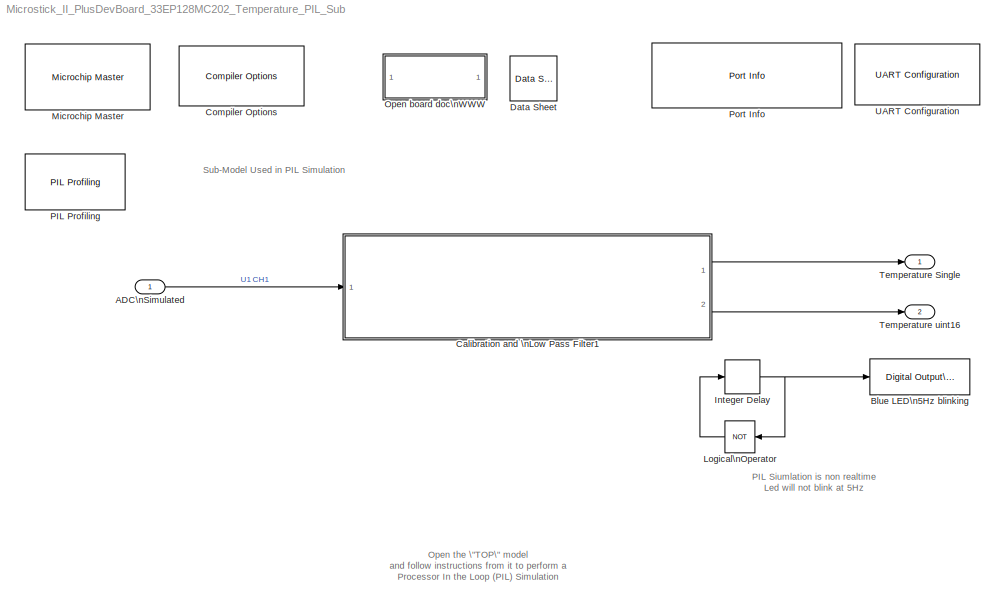
MODEL Microstick_II_PlusDevBoard_33EP128MC202_Temperature_PIL_Sub
KIND model
BLOCK [Inport] ADC\nSimulated
  IconDisplay = Port number
  OutDataTypeStr = uint16
  SID = 690
  SampleTime = .001
BLOCK [Reference] Blue LED\n5Hz blinking  REF=MCHP_Blockset/Digital IO/Digital Output\nWrite
  MCHP_MASTERLINK = Microstick_II_PlusDevBoard_33EP128MC202_Temperature_PIL_Sub/Microchip Master
  MCHP_PORT = {Digital Out}{DOU}1:1:B15;
  ORDERING = None
  PACK = off
  PIN = 15
  PORT = Dynamic Options
  PORT_TXT = B   [ 0 : 15 ]
  Ports = [1]
  SID = 684
  SIMULTANEOUS = off
  SampleTime = -1
  SourceBlock = MCHP_Blockset/Digital IO/Digital Output\nWrite
  SourceType = Output driver for Digital Output Pins
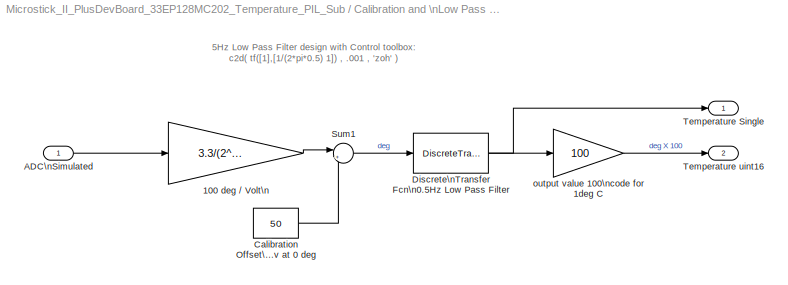
BLOCK [SubSystem] Calibration and \nLow Pass Filter1
  FunctionWithSeparateData = off
  MaskHideContents = off
  MinAlgLoopOccurrences = off
  Opaque = off
  Ports = [1, 2]
  PropExecContextOutsideSubsystem = off
  RTWSystemCode = Auto
  RequestExecContextInheritance = off
  SID = 702
  TreatAsAtomicUnit = on
BLOCK [Gain] Calibration and \nLow Pass Filter1/100 deg // Volt\n
  Gain = 3.3/(2^16) * 100
  OutDataTypeStr = single
  ParamDataTypeStr = Inherit: Inherit via internal rule
  SID = 704
  SaturateOnIntegerOverflow = off
BLOCK [Inport] Calibration and \nLow Pass Filter1/ADC\nSimulated
  IconDisplay = Port number
  OutDataTypeStr = uint16
  SID = 703
  SampleTime = .001
BLOCK [Constant] Calibration and \nLow Pass Filter1/Calibration Offset\n500 mv at 0 deg
  OutDataTypeStr = Inherit: Inherit via back propagation
  SID = 705
  SampleTime = -1
  Value = 50
BLOCK [DiscreteTransferFcn] Calibration and \nLow Pass Filter1/Discrete\nTransfer Fcn\n0.5Hz Low Pass Filter
  Denominator = [1 -0.99686]
  InputPortMap = u0
  Numerator = [0.0031367]
  Ports = [1, 1]
  SID = 706
BLOCK [Sum] Calibration and \nLow Pass Filter1/Sum1
  AccumDataTypeStr = Inherit: Same as first input
  IconShape = round
  InputSameDT = off
  Inputs = |+-
  OutDataTypeStr = Inherit: Inherit via internal rule
  Ports = [2, 1]
  SID = 707
  SaturateOnIntegerOverflow = off
BLOCK [Outport] Calibration and \nLow Pass Filter1/Temperature Single
  IconDisplay = Port number
  OutDataTypeStr = single
  SID = 709
  SampleTime = .001
BLOCK [Outport] Calibration and \nLow Pass Filter1/Temperature uint16
  IconDisplay = Port number
  OutDataTypeStr = uint16
  Port = 2
  SID = 710
  SampleTime = .001
BLOCK [Gain] Calibration and \nLow Pass Filter1/output value 100\ncode for 1deg C
  Gain = 100
  OutDataTypeStr = uint16
  ParamDataTypeStr = Inherit: Inherit via internal rule
  SID = 708
  SaturateOnIntegerOverflow = off
BLOCK [Reference] Compiler Options  REF=MCHP_Blockset/System Configuration/Compiler Options
  AssemblyListing = on
  CMSIS_DSP = Dynamic Options
  CMSIS_DSP_TXT = Dynamic Options
  COMP_LIST = Dynamic Options
  COMP_LIST_TXT = xc16 - v1.61
  DEBUG_INFO = on
  DFP_LIST = Dynamic Options
  DFP_LIST_TXT = v 1.3.85
  HEAP_SIZE = 1024
  LATEST_CMPLR = on
  MAGGREGATE = off
  MCHP_MASTERLINK = Microstick_II_PlusDevBoard_33EP128MC202_Temperature_PIL_Sub/Microchip Master
  MCHP_MULTITHREAD_COMPILATION = on
  MCODE = is more than 32768
  MCONST = in code memory
  MDATA = Can use all available memory
  MLARGEARRAY = on
  MPLAB_LINKLIB = default
  MPLAB_LINKLIB1 = default
  MSCALAR = Can use all available memory
  NO_EDS_WARN = on
  OMF = elf
  OPTIMIZATION_FLTO = on
  OPTIMIZATION_LEVEL = 1
  OPTIMIZATION_REORDER = off
  PRINT_STATISTICS = off
  PROCEDURAL_ABSTRACTION = off
  Ports = []
  Priority = 1
  ProduceHexOutput = on
  SID = 2
  SourceBlock = MCHP_Blockset/System Configuration/Compiler Options
  UNROLL_LOOPS = off
  USE_64BIT_DOUBLE = off
  UseCustom_LinkerScript = off
BLOCK [Reference] Data Sheet  REF=MCHP_Blockset/System Info/Data Sheet
  AttributesFormatString = %<cpy_MCHP_Id>
  DOC_FileLastCheckTime = [0 0 0 0 0 0]
  DOC_MCHP_Id = 33FJ64MC802
  DOC_Type = datasheet
  MCHP_MASTERLINK = Microstick_II_PlusDevBoard_33EP128MC202_Temperature_PIL_Sub/Microchip Master
  Ports = []
  SID = 6
  SourceBlock = MCHP_Blockset/System Info/Data Sheet
  cpy_MCHP_Id = 33EP128MC202
BLOCK [Delay] Integer Delay
  DelayLength = 1
  InitialCondition = 0
  InputPortMap = u0
  InputProcessing = Inherited
  Ports = [1, 1]
  SID = 685
  SampleTime = .1
BLOCK [Logic] Logical\nOperator
  AllPortsSameDT = off
  Operator = NOT
  OutDataTypeStr = boolean
  Ports = [1, 1]
  SID = 686
BLOCK [Reference] Microchip Master  REF=MCHP_Blockset/System Configuration/Microchip Master
  ACLKCON = Optimized for PWM resolution & ADC conversion speed
  ACLKCON_spd = Optimized for PWM resolution & ADC conversion speed
  ACTIV_PLL = on
  ACTIV_PLL_spd = on
  AIVTDIS = Disable Alternate Vector Table
  ALTADREF = Not used
  ALTCMPI = Not used
  ALTCVREF = Not used
  ALTI2C = I2C mapped to SDA1/SCL1 pins
  ALTI2C1 = I2C1 mapped to SDA1/SCL1 pins
  ALTI2C2 = I2C2 mapped to SDA2/SCL2 pins
  ALTI2C3 = I2C3 mapped to SDA3/SCL3 pins
  ALTPMP = Not used
  ALTQIO = QEA1; QEB1; INDX1 are selected as inputs to QEI1
  ALTRB6 = Not used
  ALTSS1 = SS1A is selected as the I/O pin for SPI1
  ALTVREF = Not used
  APL = Aux Flash Code protect is disabled
  APLK = Aux Flash Write Protection or Code Protection is Enabled
  ATMOD8 = Not used
  AWRP = Aux Flash may be written
  BACKBUG = Not used
  BISTDIS = mBIST on reset feature disabled
  BKBUG = Not used
  BODENV = 2.7V
  BOOTISA = Boot code and Exception code is MIPS32
  BOREN = Disable
  BOREN0 = Enabled
  BOREN1 = Not used
  BORLVL = Not used
  BORSEL = BOR trip voltage 2.1v (Non-OPAMP deviced operation)
  BORV = Not used
  BSEN = No Boot Segment
  BSEQ = Not used
  BSLIM = Not used
  BSS = No Boot program Flash segment
  BSS2 = No Boot Segment
  BSSO = Not used
  BTMODE = Not used
  BTSWP = BOOTSWP instruction is disabled
  BUSYFLAG = Dynamic Options
  BUSYFLAG_TXT = None
  BWP = Not used
  BWRP = Boot Segment may be written
  CFGAN14 = Not used
  CFGAN15 = Not used
  CMPPOL0 = Hysteresis is applied to falling edge
  CMPPOL1 = Hysteresis is applied to falling edge
  COE = Not used
  CP = Protection Disabled
  CPRA0 = Master core owns pin.
  CPRA1 = Master core owns pin.
  CPRA2 = Master core owns pin.
  CPRA3 = Master core owns pin.
  CPRA4 = Master core owns pin.
  CPRB0 = Master core owns pin.
  CPRB1 = Master core owns pin.
  CPRB10 = Master core owns pin.
  CPRB11 = Master core owns pin.
  CPRB12 = Master core owns pin.
  CPRB13 = Master core owns pin.
  CPRB14 = Master core owns pin.
  CPRB15 = Master core owns pin.
  CPRB2 = Master core owns pin.
  CPRB3 = Master core owns pin.
  CPRB4 = Master core owns pin.
  CPRB5 = Master core owns pin.
  CPRB6 = Master core owns pin.
  CPRB7 = Master core owns pin.
  CPRB8 = Master core owns pin.
  CPRB9 = Master core owns pin.
  CPRC0 = Master core owns pin.
  CPRC1 = Master core owns pin.
  CPRC10 = Master core owns pin.
  CPRC11 = Master core owns pin.
  CPRC12 = Master core owns pin.
  CPRC13 = Master core owns pin.
  CPRC14 = Master core owns pin.
  CPRC15 = Master core owns pin.
  CPRC2 = Master core owns pin.
  CPRC3 = Master core owns pin.
  CPRC4 = Master core owns pin.
  CPRC5 = Master core owns pin.
  CPRC6 = Master core owns pin.
  CPRC7 = Master core owns pin.
  CPRC8 = Master core owns pin.
  CPRC9 = Master core owns pin.
  CPRD0 = Master core owns pin.
  CPRD1 = Master core owns pin.
  CPRD10 = Master core owns pin.
  CPRD11 = Master core owns pin.
  CPRD12 = Master core owns pin.
  CPRD13 = Master core owns pin.
  CPRD14 = Master core owns pin.
  CPRD15 = Master core owns pin.
  CPRD2 = Master core owns pin.
  CPRD3 = Master core owns pin.
  CPRD4 = Master core owns pin.
  CPRD5 = Master core owns pin.
  CPRD6 = Master core owns pin.
  CPRD7 = Master core owns pin.
  CPRD8 = Master core owns pin.
  CPRD9 = Master core owns pin.
  CPRE0 = Master core owns pin.
  CPRE1 = Master core owns pin.
  CPRE10 = Master core owns pin.
  CPRE11 = Master core owns pin.
  CPRE12 = Master core owns pin.
  CPRE13 = Master core owns pin.
  CPRE14 = Master core owns pin.
  CPRE15 = Master core owns pin.
  CPRE2 = Master core owns pin.
  CPRE3 = Master core owns pin.
  CPRE4 = Master core owns pin.
  CPRE5 = Master core owns pin.
  CPRE6 = Master core owns pin.
  CPRE7 = Master core owns pin.
  CPRE8 = Master core owns pin.
  CPRE9 = Master core owns pin.
  CSEQ = Not used
  CSS = No Protection (other than CWRP)
  CTXT1 = Not Assigned
  CTXT2 = Not Assigned
  CTXT3 = Not Assigned
  CTXT4 = Not Assigned
  CWRP = Configuration Segment may be written
  DBCC = No Cross Connection between DAC outputs
  DBGPER = Allow CPU access to all permission regions
  DEBUG = Debugger is disabled
  DFMCY = Not used
  DISUVREG = Not used
  DMTCNT = 2^31 (2147483648)
  DMTCNTH = Not used
  DMTCNTL = Not used
  DMTDIS = Dead Man Timer is Disabled and can be enabled by software
  DMTEN = Dead Man Timer is Enabled and cannot be disabled by software
  DMTINTV = Window/Interval value is 127/128 counter value
  DMTIVT = Not used
  DMTIVTH = Not used
  DMTIVTL = Not used
  DSBOREN = Enable ZPBOR during Deep Sleep Mode
  DSLPBOR = Not used
  DSSWEN = Not used
  DSWDTEN = Enable DSWDT during Deep Sleep Mode
  DSWDTOSC = Select LPRC as DSWDT Reference clock
  DSWDTPS = 1:2^36
  EBS = No Boot EEPROM
  EJTAGBEN = Normal EJTAG functionality
  ESS = No Segment Data EEPROM
  EXTDDRSIZE = Not used
  FCANIO = Not used
  FCKSM = Clock switching is enabled;Fail-safe Clock Monitor is disabled
  FCKSMEN = Sw Disabled; Mon Disabled
  FDBGWP = Not used
  FDMTEN = Deadman Timer is disabled
  FDSEN = Enable DSEN bit in DSCON
  FECCCON = ECC and Dynamic ECC are disabled (ECCCON bits are writable)
  FETHIO = Default Ethernet I/O
  FMIIEN = MII Enabled
  FNOSC = Internal Fast RC (FRC)
  FOS = Internal Fast RC
  FOSFPR = HS3 w/PLL 16x
  FPBDIV = Not used
  FPLLICLK = FRC is input to the System PLL
  FPLLIDIV = 8x Divider
  FPLLMUL = Not used
  FPLLMULT = PLL Multiply by 128
  FPLLODIV = 32x Divider
  FPLLRNG = 34-68 MHz Input
  FPR = ECIO w/ PLL 16x
  FPWRT = 128ms
  FRANGE = High Range
  FSLEEP = Flash is powered down when the device is in Sleep mode
  FSOSCEN = Disable Secondary Oscillator
  FSRSSEL = Not used
  FUSBIDIO = Controlled by the USB Module
  FUSBIDIO1 = USBID pin is controlled by the USB1 module
  FUSBIDIO2 = USBID pin is controlled by the USB2 module
  FVBUSIO1 = VBUSON pin is controlled by the USB1 module
  FVBUSIO2 = VBUSON pin is controlled by the USB2 module
  FVBUSONIO = Not used
  FWDTEN = Disable
  FWDTWINSZ = Window size is 25%
  FWPSA = 1:512
  FWPSA0 = 1:128
  FWPSB = 1:16
  GCP = General Segment Code protect is Disabled
  GSS = User program memory is not code-protected
  GSS0 = Not used
  GSSK = General Segment Write Protection or Code Protection is Enabled
  GWRP = General Segment may be written
  HPOL = PWM module high side output pins have active-high output polarity
  HSAEN = Mailbox data flow control handshake protocol block disabled.
  HSBEN = Mailbox data flow control handshake protocol block disabled.
  HSCEN = Mailbox data flow control handshake protocol block disabled.
  HSDEN = Mailbox data flow control handshake protocol block disabled.
  HSEEN = Mailbox data flow control handshake protocol block disabled.
  HSFEN = Mailbox data flow control handshake protocol block disabled.
  HSGEN = Mailbox data flow control handshake protocol block disabled.
  HSHEN = Mailbox data flow control handshake protocol block disabled.
  HYST0 = 45 mV Hysteresis
  HYST1 = 45 mV Hysteresis
  I2C1SEL = Not used
  I2C2SEL = Not used
  IBSEQ = Not used
  ICESEL = Communicate on PGEC1/PGED1
  ICS = Communicate on PGEC1 and PGED1
  IESO = Start up with FRC; then switch
  INT_PRIORITY_DMA = 0
  IOL1WAY = Allow multiple reconfigurations
  JTAGEN = Disable
  LPCFG = Not used
  LPOL = PWM module low side output pins have active-high output polarity
  LPRCSEL = Not used
  LVRCFG = Not used
  MAXTEMP = Not used
  MBXHSA = MSIxMBXD15 assigned to mailbox handshake protocol block A
  MBXHSB = MSIxMBXD15 assigned to mailbox handshake protocol block B
  MBXHSC = MSIxMBXD15 assigned to mailbox handshake protocol block C
  MBXHSD = MSIxMBXD15 assigned to mailbox handshake protocol block D
  MBXHSE = MSIxMBXD15 assigned to mailbox handshake protocol block E
  MBXHSF = MSIxMBXD15 assigned to mailbox handshake protocol block F
  MBXHSG = MSIxMBXD15 assigned to mailbox handshake protocol block G
  MBXHSH = MSIxMBXD15 assigned to mailbox handshake protocol block H
  MBXM0 = Mailbox register configured for Master data read (Slave to Master data transfer)
  MBXM1 = Mailbox register configured for Master data read (Slave to Master data transfer)
  MBXM10 = Mailbox register configured for Master data read (Slave to Master data transfer)
  MBXM11 = Mailbox register configured for Master data read (Slave to Master data transfer)
  MBXM12 = Mailbox register configured for Master data read (Slave to Master data transfer)
  MBXM13 = Mailbox register configured for Master data read (Slave to Master data transfer)
  MBXM14 = Mailbox register configured for Master data read (Slave to Master data transfer)
  MBXM15 = Mailbox register configured for Master data read (Slave to Master data transfer)
  MBXM2 = Mailbox register configured for Master data read (Slave to Master data transfer)
  MBXM3 = Mailbox register configured for Master data read (Slave to Master data transfer)
  MBXM4 = Mailbox register configured for Master data read (Slave to Master data transfer)
  MBXM5 = Mailbox register configured for Master data read (Slave to Master data transfer)
  MBXM6 = Mailbox register configured for Master data read (Slave to Master data transfer)
  MBXM7 = Mailbox register configured for Master data read (Slave to Master data transfer)
  MBXM8 = Mailbox register configured for Master data read (Slave to Master data transfer)
  MBXM9 = Mailbox register configured for Master data read (Slave to Master data transfer)
  MCA = Not used
  MCHPVAR = MCHP.fcy.MIPS=MCHP_Fun.Hex2num('418F004544924924');MCHP.fcy.SYSCLK=MCHP_Fun.Hex2num('418F004544924924');MCHP.fcy.ADC=MCHP_Fun.Hex2num('418F004544924924');MCHP.fcy.Comparator=MCHP_Fun.Hex2num('418F004544924924');MCHP.fcy.I2C=MCHP_Fun.Hex2num('418F004544924924');MCHP.fcy.SPI=MCHP_Fun.Hex2num('418F004544924924');MCHP.fcy.UART=MCHP_Fun.Hex2num('418F004544924924');MCHP.fcy.Timers=MCHP_Fun.Hex2num('418F...<+13730ch>
  MCHP_CRC = 15783838
  MCHP_PLLRegisters = [5    245  16387     -1     -1]
  MCHP_TIMER_REQUEST = {Time Step}{TS}0:2:3:1:[]:65013.92857142857;
  MCHP_TIMER_RESULT = [1 65012.928571428594 ]
  MCLRE = Enabled
  MIPS = 65.013928571428565 * 1e6
  MIPS_DESIRED = 65e6
  MIPS_DESIRED_spd = 65e6
  NOBTSWP = BOOTSWP instruction is disabled
  ON = Not used
  OSCILLATOR_SELECT = Internal Fast RC (FRC)
  OSCILLATOR_SELECT_spd = Internal Fast RC (FRC)
  OSCIOFCN = Not used
  OSCIOFNC = general purpose digital I/O pin
  PGL1WAY = Allow only one reconfiguration
  PICREF = 33EP128MC202
  PLL96MHZ = Not used
  PLLDIV = Not used
  PLLKEN = Clock switch to PLL source will wait until the PLL lock signal is valid.
  PLLSS = Not used
  PLL_96MHZ = Not used
  PMDL1WAY = Allow only one reconfiguration
  POSCAGC = Automatic Gain Control for Oscillator
  POSCAGCDLY = Settling time = 25ms x AGCRNG
  POSCAGCRNG = Range 1x
  POSCBOOST = Boost the kick start of the oscillator
  POSCFGAIN = Gain is G3
  POSCFREQ = Not used
  POSCGAIN = 2x gain setting
  POSCMD = Primary Oscillator Disabled
  POSCMOD = Primary Oscillator Disabled
  POWERSAVE = off
  PWMLOCK = PWM registers may be written without key sequence
  PWMPIN = PWM module pins controlled by PORT register at device Reset
  PWP = Not used
  PWRTEN = Not used
  Ports = []
  Priority = 1
  QUARTZ = 7.37e+06
  QUARTZ_spd = 7.37e+06
  RBS = No Boot RAM
  RCLKSEL = Always use LPRC
  RES = Not used
  RES1 = Not used
  RES2 = Not used
  RESERVED1 = Not used
  RETCFG = Not used
  RSS = No Secure RAM
  RSTPRI = Device will obtain reset instruction from Primary flash
  RTCBAT = Not used
  RTCOSC = Not used
  RWDTPS = 1:1048576
  S1ALTI2C1 = I2C1 mapped to SDA1/SCL1 pins
  S1BACKBUG = Not used
  S1BISTDIS = Slave BIST on reset feature disabled
  S1BSSO = Not used
  S1CTXT1 = Not Assigned
  S1CTXT2 = Not Assigned
  S1CTXT3 = Not Assigned
  S1CTXT4 = Not Assigned
  S1DEBUG = Not used
  S1DMTCNTH = Not used
  S1DMTCNTL = Not used
  S1DMTDIS = Slave Dead Man Timer is Disabled and can be enabled by software
  S1DMTIVTH = Not used
  S1DMTIVTL = Not used
  S1FCKSM = Both Clock switching and Fail-safe Clock Monitor are disabled
  S1FNOSC = Internal Fast RC (FRC) Oscillator with postscaler
  S1FWDTEN = Disable
  S1ICS = Communicate on PGC1 and PGD1
  S1IESO = Start up with FRC; then switch
  S1IOL1WAY = Not used
  S1ISOLAT = The slave can operate (in debug mode) even if the SLVEN bit in the MSI is zero.
  S1MSRE = The master software oriented RESET events (RESET Op-Code; Watchdog timeout; TRAP reset; illegalInstruction) will also cause the slave subsystem to reset.
  S1NOBTSWP = BOOTSWP instruction is disabled
  S1OSCIOFNC = OSC2 is clock output
  S1PLLKEN = S1PLLKEN_ON
  S1RCLKSEL = Always use LPRC
  S1RWDTPS = 1:1048576
  S1SPI1PIN = Slave SPI1 uses I/O remap (PPS) pins
  S1SSRE = Slave generated resets will reset the Slave Enable Bit in the MSI module
  S1SWDTPS = 1:1048576
  S1WDTWIN = WDT Window is 25% of WDT period
  S1WINDIS = Watchdog Timer operates in Non-Window mode
  SEQNUM = Not used
  SID = 1
  SMB3EN = SMBus 3.0 input levels
  SMBEN = SMBus input threshold is enabled
  SMCLR = MCLR pin generates a normal system Reset
  SOSCBOOST = Boost the kick start of the oscillator
  SOSCGAIN = 2x gain setting
  SOSCSEL = Not used
  SOSCSRC = Not used
  SPI2PIN = SPI2 uses I/O remap (PPS) pins
  SSS = No Secure Segment
  SWDTPS = 1:1048576
  SWRP = Secure segment may be written
  SourceBlock = MCHP_Blockset/System Configuration/Microchip Master
  TEMP = Not used
  TIMESTEP_REF = Timer  ( 0.001s + [0.00010987%] ==> 0.001s )
  TRCEN = Trace features in the CPU are enabled
  TSEQ = Not used
  UPLLEN = USB PLL Disabled
  UPLLFSEL = USB PLL input is 24 MHz
  UPLLIDIV = Not used
  USERID = Not used
  VBATBOREN = Enable ZPBOR during VBAT Mode
  VBTBOR = Not used
  WDT = Disable
  WDTCLK = Not used
  WDTCMX = Not used
  WDTEN = Disable
  WDTPOST = 1:32768
  WDTPRE = 1:128
  WDTPS = 1:32768
  WDTSPGM = WDT stops during Flash programming
  WDTWIN = WDT Window is 25% of WDT period
  WINDIS = Watchdog Timer in Non-Window mode
  WPCFG = Not used
  WPDIS = Not used
  WPEND = Not used
  WPFP = Not used
  WUTSEL = Not used
  WWDTEN = Non-Window mode
  XTBST = Boost the kick-start
  XTCFG = 24-32 MHz crystals
  nSEQNUM = Not used
BLOCK [SubSystem] Open board doc\nWWW
  FunctionWithSeparateData = off
  MaskDisplay = disp('Microstick Plus\\nDev Board');\n
  MaskHideContents = off
  MaskIconFrame = on
  MaskIconOpaque = on
  MaskIconRotate = none
  MaskIconUnits = autoscale
  MaskPortRotate = default
  MinAlgLoopOccurrences = off
  Opaque = off
  OpenFcn = web('www.microchip.com/www.microchip.com/en556208','-browser');\npause(1);\nweb('www.microchip.com/TCAD0014178791','-browser');
  Ports = []
  PropExecContextOutsideSubsystem = off
  RTWSystemCode = Auto
  RequestExecContextInheritance = off
  SID = 642
BLOCK [Reference] PIL Profiling  REF=MCHP_Blockset/Profiling/PIL Profiling
  Info = Timer 2:  Resol: 15.38131939(ns)  -  Max value: 1.00801(ms)
  MCHP_MASTERLINK = Microstick_II_PlusDevBoard_33EP128MC202_Temperature_PIL_Sub/Microchip Master
  MCHP_TIMER_REQUEST = {TIMER for PIL}{TmrCfg}20:1:1:0:[]:65536;
  MCHP_TIMER_RESULT = [2 65535 ]
  Ports = []
  SID = 698
  SourceBlock = MCHP_Blockset/Profiling/PIL Profiling
  SourceType = Timer Configuration
  TIMER_Resolution = Dynamic Options
  TIMER_Resolution_TXT = Resol: 0.01538(us)  -  MaxPer: 1.01(ms)
  TIMER_Ressource = Dynamic Options
  TIMER_Ressource_Custom = [1]
  TIMER_Ressource_TXT = No constraints [Prefered]
BLOCK [Reference] Port Info  REF=MCHP_Blockset/System Info/Port Info
  MCHP_MASTERLINK = Microstick_II_PlusDevBoard_33EP128MC202_Temperature_PIL_Sub/Microchip Master
  Ports = []
  SID = 132
  SourceBlock = MCHP_Blockset/System Info/Port Info
BLOCK [Outport] Temperature Single
  IconDisplay = Port number
  OutDataTypeStr = single
  SID = 691
  SampleTime = .001
BLOCK [Outport] Temperature uint16
  IconDisplay = Port number
  OutDataTypeStr = uint16
  Port = 2
  SID = 692
  SampleTime = .001
BLOCK [Reference] UART Configuration  REF=MCHP_Blockset/BUS UART/UART Configuration
  ALT_IO = on
  BAUD_Choice = Dynamic Options
  BAUD_Choice_IR = Dynamic Options
  BAUD_Choice_IR_InitSeq = Dynamic Options
  BAUD_Choice_IR_InitSeq_TXT = 0
  BAUD_Choice_IR_TXT = []
  BAUD_Choice_InitSeq = Dynamic Options
  BAUD_Choice_InitSeq_TXT = 110         [-0.00%]
  BAUD_Choice_TXT = 115200         [+0.06%]
  BAUD_Custom = 115200
  BAUD_Custom_InitSeq = 0
  DuplexMode = Full duplex (default)
  FlowControl = None
  INT_PRIORITY = 0
  IRDA = off
  InitSequence = 'Hello World'
  InitSequence_chkbox = off
  MCHP_COM_ExtPil = on
  MCHP_MASTERLINK = Microstick_II_PlusDevBoard_33EP128MC202_Temperature_PIL_Sub/Microchip Master
  MCHP_PORT = {UART1  Rx}{U1RX}3:0:P43;{UART1  Tx}{U1TX}3:1:P42;
  PIN_CTS = Dynamic Options
  PIN_CTS_TXT = B0 / P32 / Pin[4]
  PIN_RTS = Dynamic Options
  PIN_RTS_TXT = A4 / P20 / Pin[12]
  PIN_RX = Dynamic Options
  PIN_RXTX_Inv = off
  PIN_RX_Inv = off
  PIN_RX_TXT = B11 / P43 / Pin[22]
  PIN_TX = Dynamic Options
  PIN_TX_Inv = off
  PIN_TX_TXT = B10 / P42 / Pin[21]
  ParityBit = No parity (default)
  Ports = []
  RX_CIRCULAR_SIZE = 256
  RX_DMA_CHANNEL = 0
  RX_DMA_SIZE = 0
  RX_IMPLEMENTATION = Circular Buffer
  RX_IMPLEMENTATION_default = Circular Buffer
  RX_INT_PRIORITY = 5
  RX_INT_WHEN = receive 1 character
  SID = 165
  SourceBlock = MCHP_Blockset/BUS UART/UART Configuration
  SourceType = Configuration for UART peripheral
  StopBit = 1 stop bit (default)
  TX_CIRCULAR_SIZE = 256
  TX_DMA_CHANNEL = 0   (Lowest Priority)
  TX_DMA_SIZE = []
  TX_IMPLEMENTATION = Circular Buffer
  TX_IMPLEMENTATION_default = Circular Buffer
  TX_INTERRUPT_PROTECTION = Do not send on conflict (default)
  TX_INTERRUPT_PROTECTION_default = Do not send on conflict (default)
  TX_INT_PRIORITY = 4
  TX_INT_WHEN = is empty
  TX_INT_WHEN_default = is empty & last char is sent
  TX_TASK_PROTECTION = Delay tasks (default)
  UART_REF = 1
ANNOTATION (root): Open the \"TOP\" model\nand follow instructions from it to perform a\nProcessor In the Loop (PIL) Simulation
ANNOTATION (root): PIL Siumlation is non realtime\nLed will not blink at 5Hz
ANNOTATION (root): Sub-Model Used in PIL Simulation
ANNOTATION Calibration and \nLow Pass Filter1: 5Hz Low Pass Filter design with Control toolbox:\nc2d( tf([1],[1/(2*pi*0.5) 1]) , .001 , 'zoh' )
LINE ADC\nSimulated:1 -> Calibration and \nLow Pass Filter1:1
LINE Calibration and \nLow Pass Filter1/100 deg // Volt\n:1 -> Calibration and \nLow Pass Filter1/Sum1:1
LINE Calibration and \nLow Pass Filter1/ADC\nSimulated:1 -> Calibration and \nLow Pass Filter1/100 deg // Volt\n:1
LINE Calibration and \nLow Pass Filter1/Calibration Offset\n500 mv at 0 deg:1 -> Calibration and \nLow Pass Filter1/Sum1:2
NET Calibration and \nLow Pass Filter1/Discrete\nTransfer Fcn\n0.5Hz Low Pass Filter:1 -> Calibration and \nLow Pass Filter1/Temperature Single:1, Calibration and \nLow Pass Filter1/output value 100\ncode for 1deg C:1
LINE Calibration and \nLow Pass Filter1/Sum1:1 -> Calibration and \nLow Pass Filter1/Discrete\nTransfer Fcn\n0.5Hz Low Pass Filter:1
LINE Calibration and \nLow Pass Filter1/output value 100\ncode for 1deg C:1 -> Calibration and \nLow Pass Filter1/Temperature uint16:1
LINE Calibration and \nLow Pass Filter1:1 -> Temperature Single:1
LINE Calibration and \nLow Pass Filter1:2 -> Temperature uint16:1
NET Integer Delay:1 -> Blue LED\n5Hz blinking:1, Logical\nOperator:1
LINE Logical\nOperator:1 -> Integer Delay:1
note: NET lines group one-source signal fan-out (src -> all destinations, sorted); 1:1 wires keep LINE
